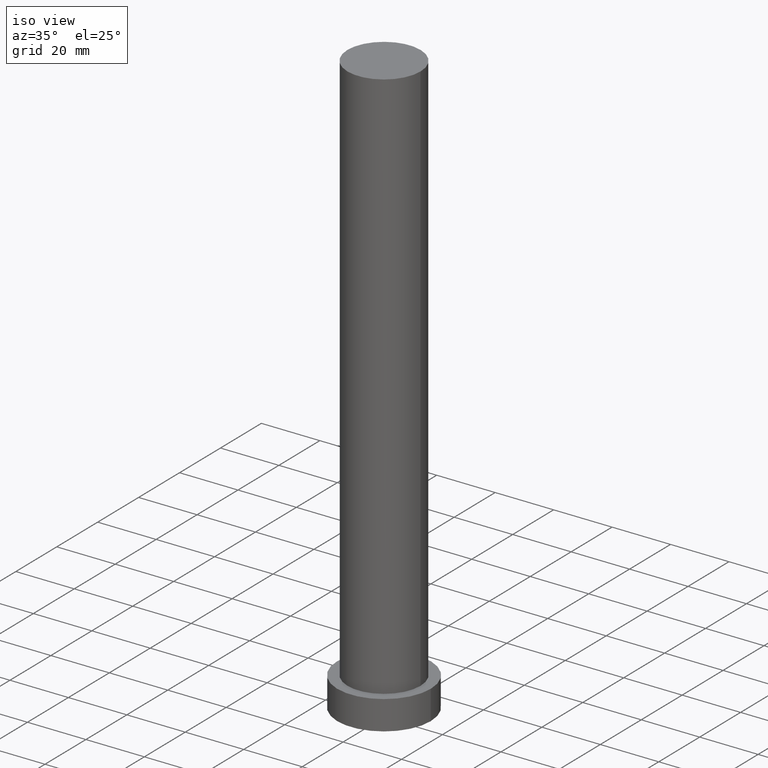
[diagram: clean part render]
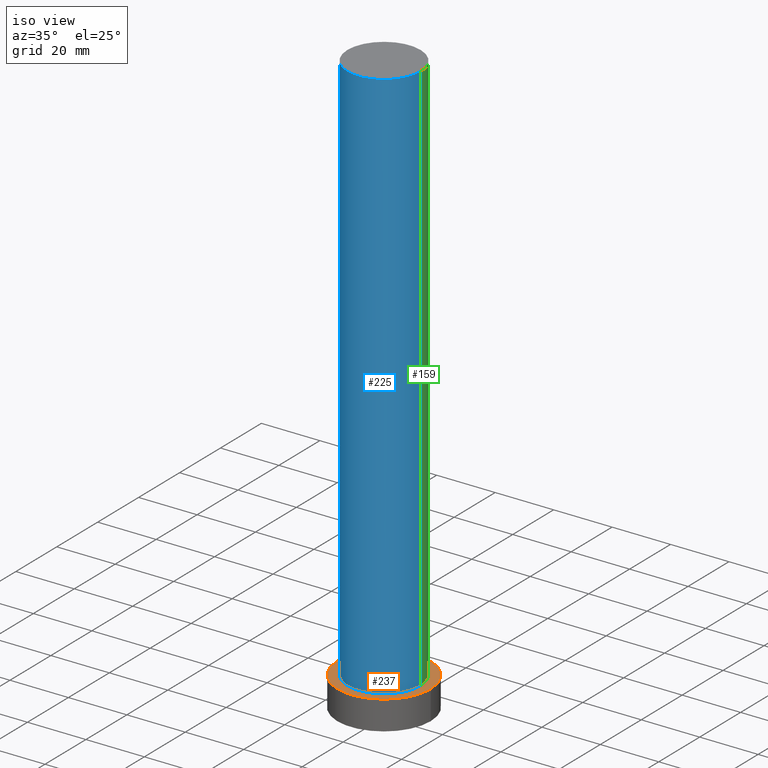
[diagram: same view with three faces highlighted in distinct colors, each labeled with its STEP entity id]
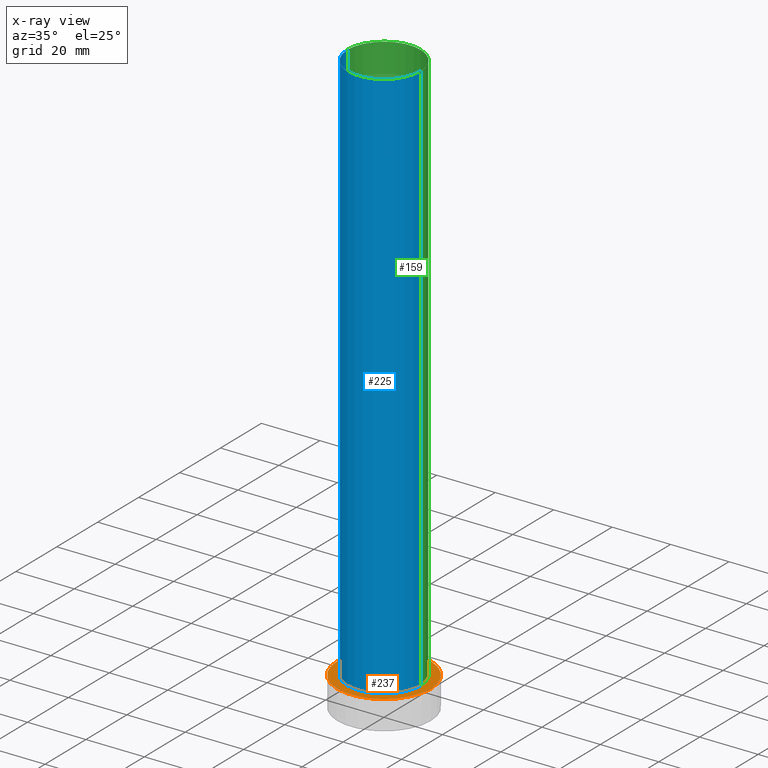
[diagram: x-ray of the same camera — body ghosted, the three highlighted faces saturated]
A machine part, iso view with three faces highlighted in distinct colors.
The next image is the same camera in x-ray (body ghosted, the three faces saturated) — at least one of them is partly hidden behind the body in this view.
Their STEP definitions:

[orange] entity #237 — the highlighted planar face has unit normal (0, 0, 1).
#1 = AXIS2_PLACEMENT_3D ( 'NONE', #153, #230, #193 ) ;
#5 = AXIS2_PLACEMENT_3D ( 'NONE', #249, #40, #91 ) ;
#13 = CARTESIAN_POINT ( 'NONE',  ( 0.000000000000000000, 0.000000000000000000, 10.00000000000000000 ) ) ;
#20 = VERTEX_POINT ( 'NONE', #179 ) ;
#40 = DIRECTION ( 'NONE',  ( 0.000000000000000000, 0.000000000000000000, 1.000000000000000000 ) ) ;
#71 = EDGE_CURVE ( 'NONE', #95, #223, #196, .T. ) ;
#73 = CARTESIAN_POINT ( 'NONE',  ( -12.50000000000000000, 0.000000000000000000, 10.00000000000000000 ) ) ;
#79 = ORIENTED_EDGE ( 'NONE', *, *, #119, .T. ) ;
#82 = AXIS2_PLACEMENT_3D ( 'NONE', #115, #154, #92 ) ;
#91 = DIRECTION ( 'NONE',  ( 1.000000000000000000, 0.000000000000000000, 0.000000000000000000 ) ) ;
#92 = DIRECTION ( 'NONE',  ( 1.000000000000000000, 0.000000000000000000, 0.000000000000000000 ) ) ;
#95 = VERTEX_POINT ( 'NONE', #130 ) ;
#105 = ORIENTED_EDGE ( 'NONE', *, *, #71, .T. ) ;
#114 = EDGE_CURVE ( 'NONE', #244, #20, #191, .T. ) ;
#115 = CARTESIAN_POINT ( 'NONE',  ( 0.000000000000000000, 0.000000000000000000, 10.00000000000000000 ) ) ;
#119 = EDGE_CURVE ( 'NONE', #223, #95, #228, .T. ) ;
#121 = EDGE_CURVE ( 'NONE', #20, #244, #164, .T. ) ;
#128 = CARTESIAN_POINT ( 'NONE',  ( -16.00000000000000000, 0.000000000000000000, 10.00000000000000000 ) ) ;
#130 = CARTESIAN_POINT ( 'NONE',  ( 16.00000000000000000, 1.959434878635765131E-15, 10.00000000000000000 ) ) ;
#136 = FACE_OUTER_BOUND ( 'NONE', #165, .T. ) ;
#141 = ORIENTED_EDGE ( 'NONE', *, *, #114, .F. ) ;
#153 = CARTESIAN_POINT ( 'NONE',  ( 0.000000000000000000, 0.000000000000000000, 10.00000000000000000 ) ) ;
#154 = DIRECTION ( 'NONE',  ( 0.000000000000000000, 0.000000000000000000, 1.000000000000000000 ) ) ;
#156 = DIRECTION ( 'NONE',  ( 0.000000000000000000, 0.000000000000000000, 1.000000000000000000 ) ) ;
#164 = CIRCLE ( 'NONE', #254, 12.50000000000000000 ) ;
#165 = EDGE_LOOP ( 'NONE', ( #79, #105 ) ) ;
#170 = FACE_BOUND ( 'NONE', #178, .T. ) ;
#172 = DIRECTION ( 'NONE',  ( 1.000000000000000000, 0.000000000000000000, -0.000000000000000000 ) ) ;
#174 = DIRECTION ( 'NONE',  ( 0.000000000000000000, 0.000000000000000000, 1.000000000000000000 ) ) ;
#175 = DIRECTION ( 'NONE',  ( 1.000000000000000000, 0.000000000000000000, 0.000000000000000000 ) ) ;
#178 = EDGE_LOOP ( 'NONE', ( #141, #227 ) ) ;
#179 = CARTESIAN_POINT ( 'NONE',  ( 12.50000000000000000, 1.530808498934191521E-15, 10.00000000000000000 ) ) ;
#187 = AXIS2_PLACEMENT_3D ( 'NONE', #214, #156, #172 ) ;
#191 = CIRCLE ( 'NONE', #82, 12.50000000000000000 ) ;
#193 = DIRECTION ( 'NONE',  ( 1.000000000000000000, 0.000000000000000000, 0.000000000000000000 ) ) ;
#196 = CIRCLE ( 'NONE', #5, 16.00000000000000000 ) ;
#214 = CARTESIAN_POINT ( 'NONE',  ( 0.000000000000000000, 0.000000000000000000, 10.00000000000000000 ) ) ;
#223 = VERTEX_POINT ( 'NONE', #128 ) ;
#227 = ORIENTED_EDGE ( 'NONE', *, *, #121, .F. ) ;
#228 = CIRCLE ( 'NONE', #1, 16.00000000000000000 ) ;
#230 = DIRECTION ( 'NONE',  ( 0.000000000000000000, 0.000000000000000000, 1.000000000000000000 ) ) ;
#237 = ADVANCED_FACE ( 'NONE', ( #170, #136 ), #251, .T. ) ;
#244 = VERTEX_POINT ( 'NONE', #73 ) ;
#249 = CARTESIAN_POINT ( 'NONE',  ( 0.000000000000000000, 0.000000000000000000, 10.00000000000000000 ) ) ;
#251 = PLANE ( 'NONE',  #187 ) ;
#254 = AXIS2_PLACEMENT_3D ( 'NONE', #13, #174, #175 ) ;

[blue] entity #225 — the highlighted cylindrical surface (partial cylindrical patch) has radius 12.5 mm, axis along (-0, -0, -1).
#4 = ORIENTED_EDGE ( 'NONE', *, *, #143, .F. ) ;
#8 = CARTESIAN_POINT ( 'NONE',  ( -12.50000000000000000, 0.000000000000000000, 200.0000000000000000 ) ) ;
#14 = LINE ( 'NONE', #8, #84 ) ;
#15 = CARTESIAN_POINT ( 'NONE',  ( 12.50000000000000000, 1.530808498934191521E-15, 200.0000000000000000 ) ) ;
#20 = VERTEX_POINT ( 'NONE', #179 ) ;
#27 = ORIENTED_EDGE ( 'NONE', *, *, #36, .F. ) ;
#29 = CIRCLE ( 'NONE', #149, 12.50000000000000000 ) ;
#34 = CYLINDRICAL_SURFACE ( 'NONE', #235, 12.50000000000000000 ) ;
#36 = EDGE_CURVE ( 'NONE', #146, #20, #41, .T. ) ;
#41 = LINE ( 'NONE', #252, #247 ) ;
#46 = ORIENTED_EDGE ( 'NONE', *, *, #114, .T. ) ;
#63 = VERTEX_POINT ( 'NONE', #213 ) ;
#73 = CARTESIAN_POINT ( 'NONE',  ( -12.50000000000000000, 0.000000000000000000, 10.00000000000000000 ) ) ;
#75 = DIRECTION ( 'NONE',  ( -0.000000000000000000, -0.000000000000000000, -1.000000000000000000 ) ) ;
#80 = ORIENTED_EDGE ( 'NONE', *, *, #190, .T. ) ;
#82 = AXIS2_PLACEMENT_3D ( 'NONE', #115, #154, #92 ) ;
#84 = VECTOR ( 'NONE', #86, 1000.000000000000000 ) ;
#85 = FACE_OUTER_BOUND ( 'NONE', #117, .T. ) ;
#86 = DIRECTION ( 'NONE',  ( -0.000000000000000000, -0.000000000000000000, -1.000000000000000000 ) ) ;
#92 = DIRECTION ( 'NONE',  ( 1.000000000000000000, 0.000000000000000000, 0.000000000000000000 ) ) ;
#94 = CARTESIAN_POINT ( 'NONE',  ( 0.000000000000000000, 0.000000000000000000, 200.0000000000000000 ) ) ;
#114 = EDGE_CURVE ( 'NONE', #244, #20, #191, .T. ) ;
#115 = CARTESIAN_POINT ( 'NONE',  ( 0.000000000000000000, 0.000000000000000000, 10.00000000000000000 ) ) ;
#117 = EDGE_LOOP ( 'NONE', ( #27, #4, #80, #46 ) ) ;
#133 = DIRECTION ( 'NONE',  ( 0.000000000000000000, 0.000000000000000000, 1.000000000000000000 ) ) ;
#143 = EDGE_CURVE ( 'NONE', #63, #146, #29, .T. ) ;
#146 = VERTEX_POINT ( 'NONE', #15 ) ;
#147 = DIRECTION ( 'NONE',  ( -0.000000000000000000, -0.000000000000000000, -1.000000000000000000 ) ) ;
#149 = AXIS2_PLACEMENT_3D ( 'NONE', #94, #133, #234 ) ;
#150 = DIRECTION ( 'NONE',  ( -1.000000000000000000, 0.000000000000000000, 0.000000000000000000 ) ) ;
#154 = DIRECTION ( 'NONE',  ( 0.000000000000000000, 0.000000000000000000, 1.000000000000000000 ) ) ;
#166 = CARTESIAN_POINT ( 'NONE',  ( 0.000000000000000000, 0.000000000000000000, 200.0000000000000000 ) ) ;
#179 = CARTESIAN_POINT ( 'NONE',  ( 12.50000000000000000, 1.530808498934191521E-15, 10.00000000000000000 ) ) ;
#190 = EDGE_CURVE ( 'NONE', #63, #244, #14, .T. ) ;
#191 = CIRCLE ( 'NONE', #82, 12.50000000000000000 ) ;
#213 = CARTESIAN_POINT ( 'NONE',  ( -12.50000000000000000, 0.000000000000000000, 200.0000000000000000 ) ) ;
#225 = ADVANCED_FACE ( 'NONE', ( #85 ), #34, .T. ) ;
#234 = DIRECTION ( 'NONE',  ( 1.000000000000000000, 0.000000000000000000, 0.000000000000000000 ) ) ;
#235 = AXIS2_PLACEMENT_3D ( 'NONE', #166, #147, #150 ) ;
#244 = VERTEX_POINT ( 'NONE', #73 ) ;
#247 = VECTOR ( 'NONE', #75, 1000.000000000000000 ) ;
#252 = CARTESIAN_POINT ( 'NONE',  ( 12.50000000000000000, 1.530808498934191521E-15, 200.0000000000000000 ) ) ;

[green] entity #159 — the highlighted cylindrical surface (partial cylindrical patch) has radius 12.5 mm, axis along (-0, -0, -1).
#8 = CARTESIAN_POINT ( 'NONE',  ( -12.50000000000000000, 0.000000000000000000, 200.0000000000000000 ) ) ;
#10 = DIRECTION ( 'NONE',  ( 1.000000000000000000, 0.000000000000000000, 0.000000000000000000 ) ) ;
#12 = AXIS2_PLACEMENT_3D ( 'NONE', #206, #109, #10 ) ;
#13 = CARTESIAN_POINT ( 'NONE',  ( 0.000000000000000000, 0.000000000000000000, 10.00000000000000000 ) ) ;
#14 = LINE ( 'NONE', #8, #84 ) ;
#15 = CARTESIAN_POINT ( 'NONE',  ( 12.50000000000000000, 1.530808498934191521E-15, 200.0000000000000000 ) ) ;
#20 = VERTEX_POINT ( 'NONE', #179 ) ;
#25 = ORIENTED_EDGE ( 'NONE', *, *, #121, .T. ) ;
#31 = ORIENTED_EDGE ( 'NONE', *, *, #36, .T. ) ;
#36 = EDGE_CURVE ( 'NONE', #146, #20, #41, .T. ) ;
#37 = CARTESIAN_POINT ( 'NONE',  ( 0.000000000000000000, 0.000000000000000000, 200.0000000000000000 ) ) ;
#41 = LINE ( 'NONE', #252, #247 ) ;
#54 = CYLINDRICAL_SURFACE ( 'NONE', #182, 12.50000000000000000 ) ;
#63 = VERTEX_POINT ( 'NONE', #213 ) ;
#73 = CARTESIAN_POINT ( 'NONE',  ( -12.50000000000000000, 0.000000000000000000, 10.00000000000000000 ) ) ;
#75 = DIRECTION ( 'NONE',  ( -0.000000000000000000, -0.000000000000000000, -1.000000000000000000 ) ) ;
#84 = VECTOR ( 'NONE', #86, 1000.000000000000000 ) ;
#86 = DIRECTION ( 'NONE',  ( -0.000000000000000000, -0.000000000000000000, -1.000000000000000000 ) ) ;
#109 = DIRECTION ( 'NONE',  ( 0.000000000000000000, 0.000000000000000000, 1.000000000000000000 ) ) ;
#118 = CIRCLE ( 'NONE', #12, 12.50000000000000000 ) ;
#121 = EDGE_CURVE ( 'NONE', #20, #244, #164, .T. ) ;
#124 = ORIENTED_EDGE ( 'NONE', *, *, #190, .F. ) ;
#125 = ORIENTED_EDGE ( 'NONE', *, *, #232, .F. ) ;
#135 = DIRECTION ( 'NONE',  ( -0.000000000000000000, -0.000000000000000000, -1.000000000000000000 ) ) ;
#146 = VERTEX_POINT ( 'NONE', #15 ) ;
#159 = ADVANCED_FACE ( 'NONE', ( #208 ), #54, .T. ) ;
#164 = CIRCLE ( 'NONE', #254, 12.50000000000000000 ) ;
#174 = DIRECTION ( 'NONE',  ( 0.000000000000000000, 0.000000000000000000, 1.000000000000000000 ) ) ;
#175 = DIRECTION ( 'NONE',  ( 1.000000000000000000, 0.000000000000000000, 0.000000000000000000 ) ) ;
#179 = CARTESIAN_POINT ( 'NONE',  ( 12.50000000000000000, 1.530808498934191521E-15, 10.00000000000000000 ) ) ;
#182 = AXIS2_PLACEMENT_3D ( 'NONE', #37, #135, #202 ) ;
#190 = EDGE_CURVE ( 'NONE', #63, #244, #14, .T. ) ;
#202 = DIRECTION ( 'NONE',  ( -1.000000000000000000, 0.000000000000000000, 0.000000000000000000 ) ) ;
#206 = CARTESIAN_POINT ( 'NONE',  ( 0.000000000000000000, 0.000000000000000000, 200.0000000000000000 ) ) ;
#208 = FACE_OUTER_BOUND ( 'NONE', #221, .T. ) ;
#213 = CARTESIAN_POINT ( 'NONE',  ( -12.50000000000000000, 0.000000000000000000, 200.0000000000000000 ) ) ;
#221 = EDGE_LOOP ( 'NONE', ( #125, #31, #25, #124 ) ) ;
#232 = EDGE_CURVE ( 'NONE', #146, #63, #118, .T. ) ;
#244 = VERTEX_POINT ( 'NONE', #73 ) ;
#247 = VECTOR ( 'NONE', #75, 1000.000000000000000 ) ;
#252 = CARTESIAN_POINT ( 'NONE',  ( 12.50000000000000000, 1.530808498934191521E-15, 200.0000000000000000 ) ) ;
#254 = AXIS2_PLACEMENT_3D ( 'NONE', #13, #174, #175 ) ;